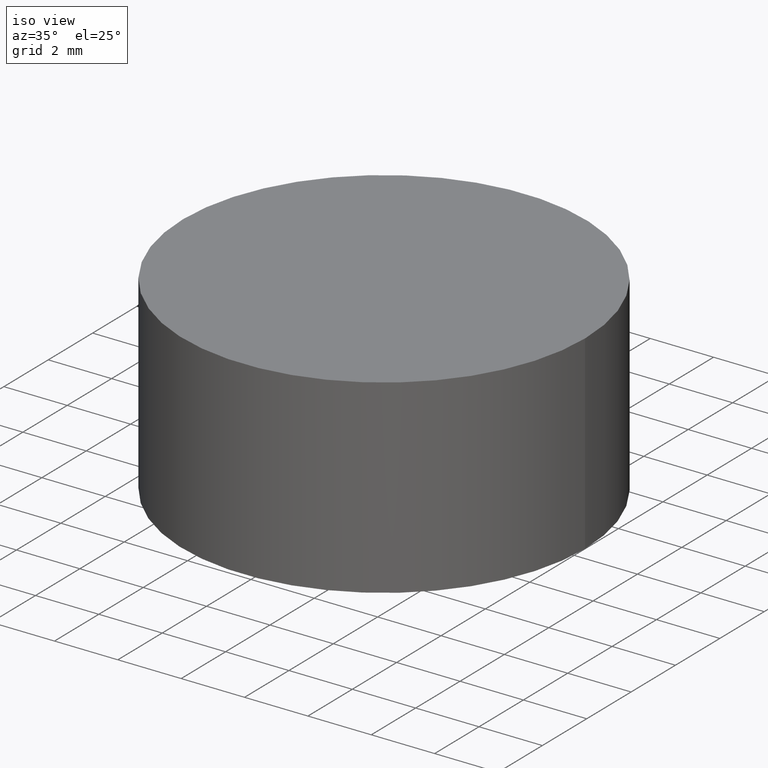
[diagram: clean part render]
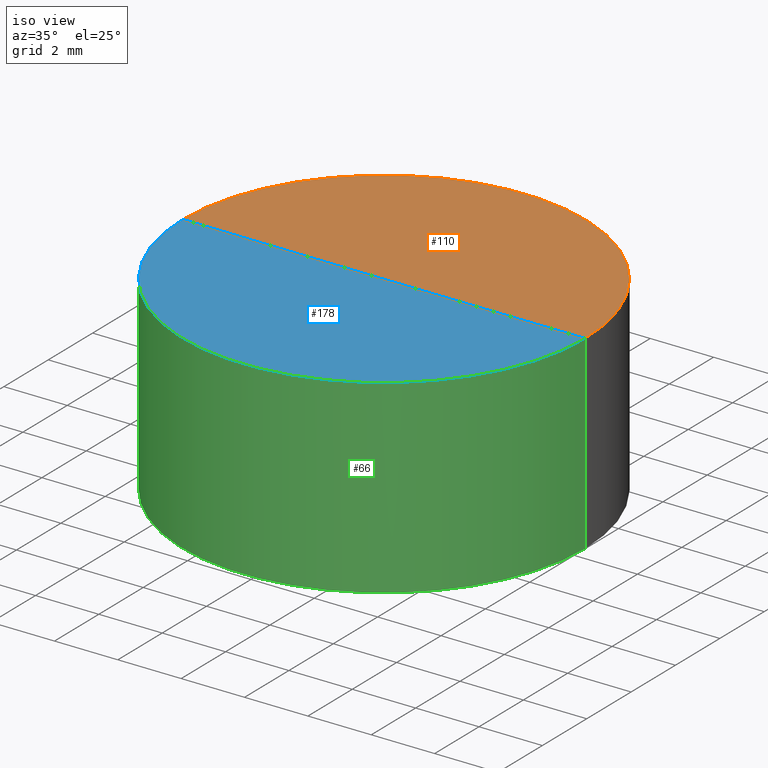
[diagram: same view with three faces highlighted in distinct colors, each labeled with its STEP entity id]
A machine part, iso view with three faces highlighted in distinct colors.
Their STEP definitions:

[orange] entity #110 — the highlighted spherical surface has radius 2000 mm.
#17 = DIRECTION ( 'NONE',  ( 1.000000000000000000, 0.000000000000000000, 0.000000000000000000 ) ) ;
#31 = ORIENTED_EDGE ( 'NONE', *, *, #164, .T. ) ;
#36 = AXIS2_PLACEMENT_3D ( 'NONE', #191, #122, #17 ) ;
#37 = DIRECTION ( 'NONE',  ( 0.000000000000000000, 0.000000000000000000, 1.000000000000000000 ) ) ;
#43 = EDGE_CURVE ( 'NONE', #130, #184, #118, .T. ) ;
#54 = CARTESIAN_POINT ( 'NONE',  ( 2.463307335887066074E-13, 0.000000000000000000, 2005.989919349595084 ) ) ;
#62 = CARTESIAN_POINT ( 'NONE',  ( 3.687954135034419575E-13, 0.000000000000000000, 5.989919349595140829 ) ) ;
#72 = DIRECTION ( 'NONE',  ( -0.000000000000000000, -0.000000000000000000, -1.000000000000000000 ) ) ;
#73 = DIRECTION ( 'NONE',  ( 0.000000000000000000, 1.000000000000000000, -0.000000000000000000 ) ) ;
#82 = AXIS2_PLACEMENT_3D ( 'NONE', #54, #73, #37 ) ;
#87 = EDGE_LOOP ( 'NONE', ( #131, #31, #170 ) ) ;
#94 = CARTESIAN_POINT ( 'NONE',  ( 6.349999999988937383, 7.776507174578918806E-16, 6.000000000000005329 ) ) ;
#101 = VERTEX_POINT ( 'NONE', #62 ) ;
#109 = CIRCLE ( 'NONE', #143, 2000.000000000000000 ) ;
#110 = ADVANCED_FACE ( 'NONE', ( #169 ), #149, .F. ) ;
#118 = CIRCLE ( 'NONE', #163, 6.349999999988691357 ) ;
#122 = DIRECTION ( 'NONE',  ( 0.000000000000000000, -1.000000000000000000, -0.000000000000000000 ) ) ;
#123 = DIRECTION ( 'NONE',  ( 1.000000000000000000, 0.000000000000000000, 0.000000000000000000 ) ) ;
#130 = VERTEX_POINT ( 'NONE', #174 ) ;
#131 = ORIENTED_EDGE ( 'NONE', *, *, #43, .F. ) ;
#135 = CARTESIAN_POINT ( 'NONE',  ( 2.463307335887066074E-13, 0.000000000000000000, 6.000000000000005329 ) ) ;
#138 = DIRECTION ( 'NONE',  ( 1.224646799147353207E-16, -1.000000000000000000, 0.000000000000000000 ) ) ;
#141 = EDGE_CURVE ( 'NONE', #184, #101, #180, .T. ) ;
#143 = AXIS2_PLACEMENT_3D ( 'NONE', #201, #138, #176 ) ;
#149 = SPHERICAL_SURFACE ( 'NONE', #36, 2000.000000000000000 ) ;
#163 = AXIS2_PLACEMENT_3D ( 'NONE', #135, #72, #123 ) ;
#164 = EDGE_CURVE ( 'NONE', #130, #101, #109, .T. ) ;
#169 = FACE_OUTER_BOUND ( 'NONE', #87, .T. ) ;
#170 = ORIENTED_EDGE ( 'NONE', *, *, #141, .F. ) ;
#174 = CARTESIAN_POINT ( 'NONE',  ( -6.349999999988444443, 0.000000000000000000, 6.000000000000005329 ) ) ;
#176 = DIRECTION ( 'NONE',  ( 1.000000000000000000, 1.224646799147353207E-16, 0.000000000000000000 ) ) ;
#180 = CIRCLE ( 'NONE', #82, 2000.000000000000000 ) ;
#184 = VERTEX_POINT ( 'NONE', #94 ) ;
#191 = CARTESIAN_POINT ( 'NONE',  ( 2.463307335887066074E-13, 0.000000000000000000, 2005.989919349595084 ) ) ;
#201 = CARTESIAN_POINT ( 'NONE',  ( 2.463307335887066074E-13, 0.000000000000000000, 2005.989919349595084 ) ) ;

[blue] entity #178 — the highlighted spherical surface has radius 2000 mm.
#20 = FACE_OUTER_BOUND ( 'NONE', #85, .T. ) ;
#37 = DIRECTION ( 'NONE',  ( 0.000000000000000000, 0.000000000000000000, 1.000000000000000000 ) ) ;
#44 = AXIS2_PLACEMENT_3D ( 'NONE', #75, #107, #152 ) ;
#46 = ORIENTED_EDGE ( 'NONE', *, *, #55, .F. ) ;
#48 = CIRCLE ( 'NONE', #44, 6.349999999988691357 ) ;
#54 = CARTESIAN_POINT ( 'NONE',  ( 2.463307335887066074E-13, 0.000000000000000000, 2005.989919349595084 ) ) ;
#55 = EDGE_CURVE ( 'NONE', #184, #130, #48, .T. ) ;
#62 = CARTESIAN_POINT ( 'NONE',  ( 3.687954135034419575E-13, 0.000000000000000000, 5.989919349595140829 ) ) ;
#63 = DIRECTION ( 'NONE',  ( 0.000000000000000000, -1.000000000000000000, -0.000000000000000000 ) ) ;
#67 = SPHERICAL_SURFACE ( 'NONE', #192, 2000.000000000000000 ) ;
#73 = DIRECTION ( 'NONE',  ( 0.000000000000000000, 1.000000000000000000, -0.000000000000000000 ) ) ;
#75 = CARTESIAN_POINT ( 'NONE',  ( 2.463307335887066074E-13, 0.000000000000000000, 6.000000000000005329 ) ) ;
#82 = AXIS2_PLACEMENT_3D ( 'NONE', #54, #73, #37 ) ;
#85 = EDGE_LOOP ( 'NONE', ( #88, #46, #199 ) ) ;
#88 = ORIENTED_EDGE ( 'NONE', *, *, #164, .F. ) ;
#94 = CARTESIAN_POINT ( 'NONE',  ( 6.349999999988937383, 7.776507174578918806E-16, 6.000000000000005329 ) ) ;
#101 = VERTEX_POINT ( 'NONE', #62 ) ;
#107 = DIRECTION ( 'NONE',  ( -0.000000000000000000, -0.000000000000000000, -1.000000000000000000 ) ) ;
#109 = CIRCLE ( 'NONE', #143, 2000.000000000000000 ) ;
#130 = VERTEX_POINT ( 'NONE', #174 ) ;
#138 = DIRECTION ( 'NONE',  ( 1.224646799147353207E-16, -1.000000000000000000, 0.000000000000000000 ) ) ;
#141 = EDGE_CURVE ( 'NONE', #184, #101, #180, .T. ) ;
#143 = AXIS2_PLACEMENT_3D ( 'NONE', #201, #138, #176 ) ;
#151 = CARTESIAN_POINT ( 'NONE',  ( 2.463307335887066074E-13, 0.000000000000000000, 2005.989919349595084 ) ) ;
#152 = DIRECTION ( 'NONE',  ( 1.000000000000000000, 0.000000000000000000, 0.000000000000000000 ) ) ;
#164 = EDGE_CURVE ( 'NONE', #130, #101, #109, .T. ) ;
#171 = DIRECTION ( 'NONE',  ( 1.000000000000000000, 0.000000000000000000, 0.000000000000000000 ) ) ;
#174 = CARTESIAN_POINT ( 'NONE',  ( -6.349999999988444443, 0.000000000000000000, 6.000000000000005329 ) ) ;
#176 = DIRECTION ( 'NONE',  ( 1.000000000000000000, 1.224646799147353207E-16, 0.000000000000000000 ) ) ;
#178 = ADVANCED_FACE ( 'NONE', ( #20 ), #67, .F. ) ;
#180 = CIRCLE ( 'NONE', #82, 2000.000000000000000 ) ;
#184 = VERTEX_POINT ( 'NONE', #94 ) ;
#192 = AXIS2_PLACEMENT_3D ( 'NONE', #151, #63, #171 ) ;
#199 = ORIENTED_EDGE ( 'NONE', *, *, #141, .T. ) ;
#201 = CARTESIAN_POINT ( 'NONE',  ( 2.463307335887066074E-13, 0.000000000000000000, 2005.989919349595084 ) ) ;

[green] entity #66 — the highlighted cylindrical surface (partial cylindrical patch) has radius 6.35 mm, axis along (-0, -0, -1).
#8 = AXIS2_PLACEMENT_3D ( 'NONE', #16, #148, #93 ) ;
#14 = DIRECTION ( 'NONE',  ( -0.000000000000000000, -0.000000000000000000, -1.000000000000000000 ) ) ;
#16 = CARTESIAN_POINT ( 'NONE',  ( 0.000000000000000000, 0.000000000000000000, 0.000000000000000000 ) ) ;
#19 = FACE_OUTER_BOUND ( 'NONE', #35, .T. ) ;
#29 = VERTEX_POINT ( 'NONE', #50 ) ;
#32 = EDGE_CURVE ( 'NONE', #130, #104, #150, .T. ) ;
#33 = DIRECTION ( 'NONE',  ( -0.000000000000000000, -0.000000000000000000, -1.000000000000000000 ) ) ;
#35 = EDGE_LOOP ( 'NONE', ( #165, #90, #161, #117 ) ) ;
#40 = EDGE_CURVE ( 'NONE', #104, #29, #166, .T. ) ;
#44 = AXIS2_PLACEMENT_3D ( 'NONE', #75, #107, #152 ) ;
#48 = CIRCLE ( 'NONE', #44, 6.349999999988691357 ) ;
#49 = CARTESIAN_POINT ( 'NONE',  ( -6.349999999999999645, 0.000000000000000000, 6.000000000000000000 ) ) ;
#50 = CARTESIAN_POINT ( 'NONE',  ( 6.349999999999999645, 7.776507174585692163E-16, 0.000000000000000000 ) ) ;
#55 = EDGE_CURVE ( 'NONE', #184, #130, #48, .T. ) ;
#61 = VECTOR ( 'NONE', #33, 1000.000000000000000 ) ;
#64 = AXIS2_PLACEMENT_3D ( 'NONE', #168, #14, #132 ) ;
#66 = ADVANCED_FACE ( 'NONE', ( #19 ), #89, .T. ) ;
#75 = CARTESIAN_POINT ( 'NONE',  ( 2.463307335887066074E-13, 0.000000000000000000, 6.000000000000005329 ) ) ;
#79 = EDGE_CURVE ( 'NONE', #184, #29, #200, .T. ) ;
#89 = CYLINDRICAL_SURFACE ( 'NONE', #64, 6.349999999999999645 ) ;
#90 = ORIENTED_EDGE ( 'NONE', *, *, #55, .T. ) ;
#93 = DIRECTION ( 'NONE',  ( 1.000000000000000000, 0.000000000000000000, 0.000000000000000000 ) ) ;
#94 = CARTESIAN_POINT ( 'NONE',  ( 6.349999999988937383, 7.776507174578918806E-16, 6.000000000000005329 ) ) ;
#104 = VERTEX_POINT ( 'NONE', #136 ) ;
#105 = CARTESIAN_POINT ( 'NONE',  ( 6.349999999999999645, 7.776507174585692163E-16, 6.000000000000000000 ) ) ;
#107 = DIRECTION ( 'NONE',  ( -0.000000000000000000, -0.000000000000000000, -1.000000000000000000 ) ) ;
#117 = ORIENTED_EDGE ( 'NONE', *, *, #40, .T. ) ;
#130 = VERTEX_POINT ( 'NONE', #174 ) ;
#132 = DIRECTION ( 'NONE',  ( -1.000000000000000000, 0.000000000000000000, 0.000000000000000000 ) ) ;
#136 = CARTESIAN_POINT ( 'NONE',  ( -6.349999999999999645, 0.000000000000000000, 0.000000000000000000 ) ) ;
#148 = DIRECTION ( 'NONE',  ( 0.000000000000000000, 0.000000000000000000, 1.000000000000000000 ) ) ;
#150 = LINE ( 'NONE', #49, #195 ) ;
#152 = DIRECTION ( 'NONE',  ( 1.000000000000000000, 0.000000000000000000, 0.000000000000000000 ) ) ;
#161 = ORIENTED_EDGE ( 'NONE', *, *, #32, .T. ) ;
#165 = ORIENTED_EDGE ( 'NONE', *, *, #79, .F. ) ;
#166 = CIRCLE ( 'NONE', #8, 6.349999999999999645 ) ;
#168 = CARTESIAN_POINT ( 'NONE',  ( 0.000000000000000000, 0.000000000000000000, 6.000000000000000000 ) ) ;
#174 = CARTESIAN_POINT ( 'NONE',  ( -6.349999999988444443, 0.000000000000000000, 6.000000000000005329 ) ) ;
#184 = VERTEX_POINT ( 'NONE', #94 ) ;
#185 = DIRECTION ( 'NONE',  ( -0.000000000000000000, -0.000000000000000000, -1.000000000000000000 ) ) ;
#195 = VECTOR ( 'NONE', #185, 1000.000000000000000 ) ;
#200 = LINE ( 'NONE', #105, #61 ) ;